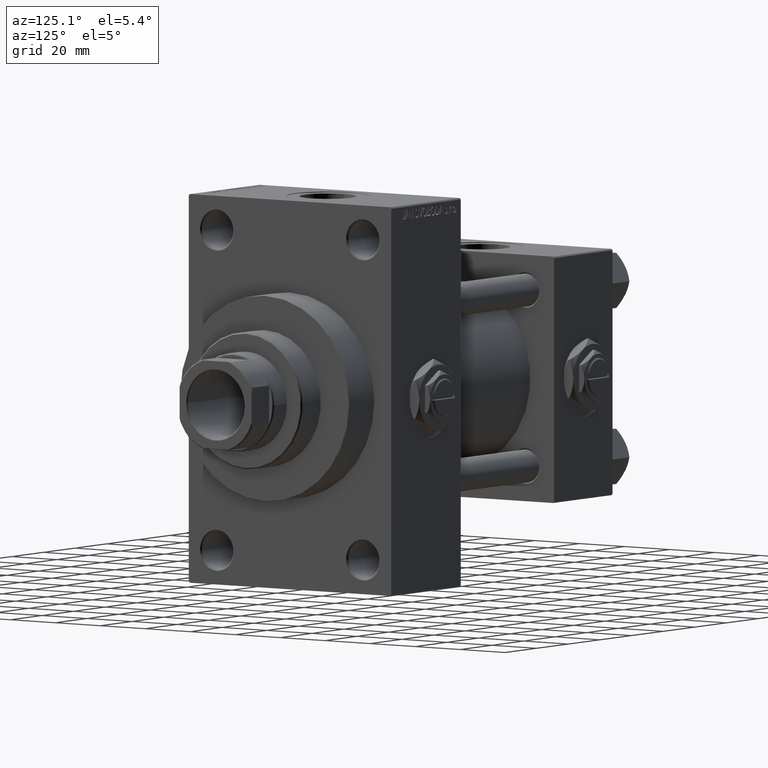
[diagram: clean part render]
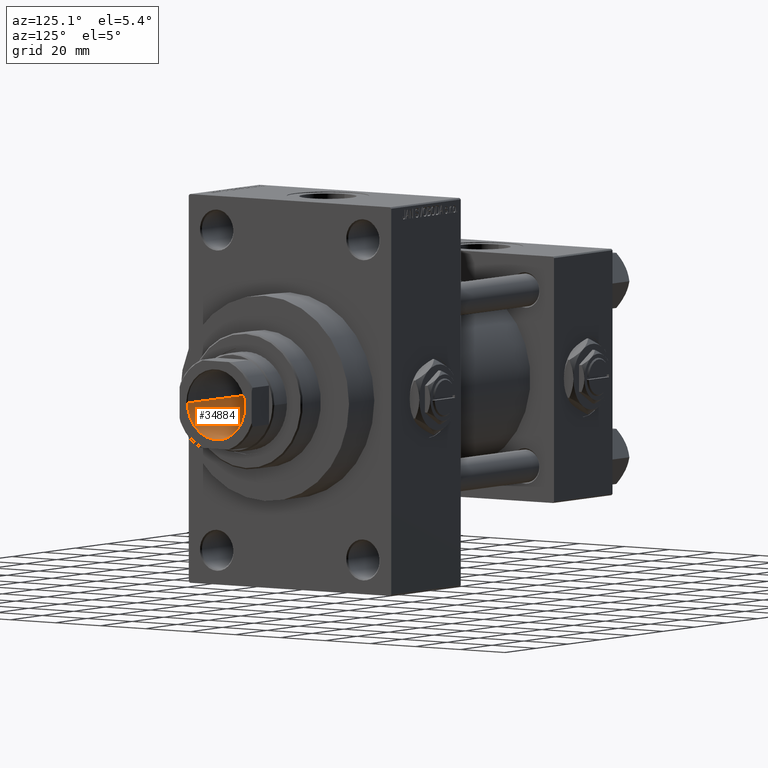
[diagram: same view with one face highlighted and labeled with its STEP entity id]
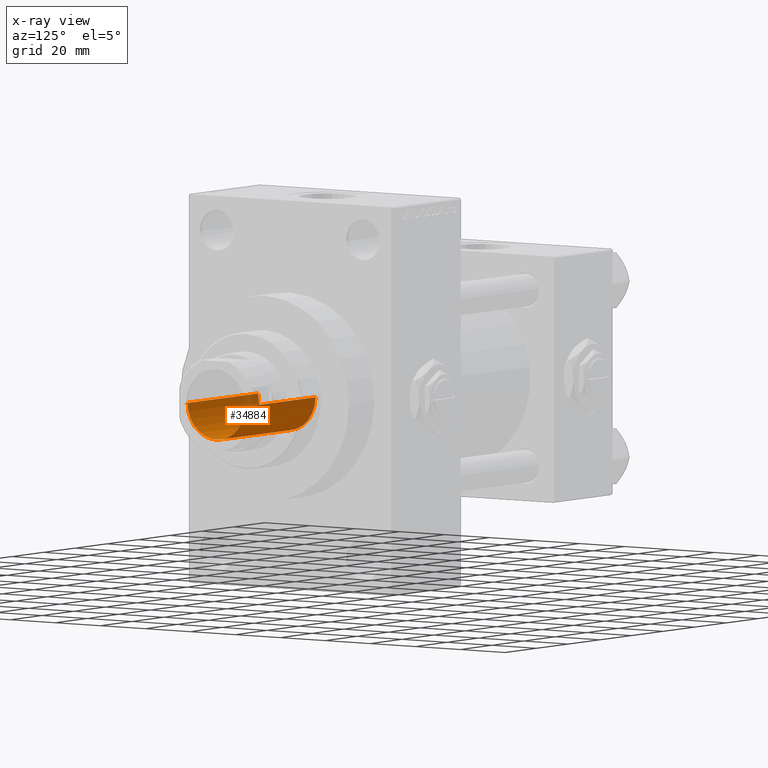
[diagram: x-ray of the same camera — body ghosted, the highlighted face saturated]
A machine part, auxiliary view. The second image highlights one B-rep face of the part: STEP entity #34884.
The next image is the same camera in x-ray: the body ghosted, the highlighted face saturated — about 4% of this face is hidden behind the body in this view.
In plain terms, the highlighted cylindrical surface (edge-blend (fillet) strip) has radius 12.75 mm, axis along (1, 0, 0).
Its self-contained STEP definition (entity closure, byte-faithful):
#243 = AXIS2_PLACEMENT_3D ( 'NONE', #47529, #1423, #29084 ) ;
#545 = DIRECTION ( 'NONE',  ( -0.000000000000000000, -0.000000000000000000, 1.000000000000000000 ) ) ;
#593 = ORIENTED_EDGE ( 'NONE', *, *, #11646, .F. ) ;
#1327 = LINE ( 'NONE', #16537, #8792 ) ;
#1369 = CARTESIAN_POINT ( 'NONE',  ( 12.74999999999998934, 0.000000000000000000, 105.0000000000000284 ) ) ;
#1423 = DIRECTION ( 'NONE',  ( -0.000000000000000000, -0.000000000000000000, 1.000000000000000000 ) ) ;
#3482 = VECTOR ( 'NONE', #545, 1000.000000000000000 ) ;
#4202 = CIRCLE ( 'NONE', #243, 12.74999999999998934 ) ;
#6218 = CARTESIAN_POINT ( 'NONE',  ( -12.74999999999999112, 1.561424668912874125E-15, 149.7000000000000455 ) ) ;
#8614 = DIRECTION ( 'NONE',  ( -0.000000000000000000, -0.000000000000000000, 1.000000000000000000 ) ) ;
#8792 = VECTOR ( 'NONE', #28001, 1000.000000000000000 ) ;
#10065 = CARTESIAN_POINT ( 'NONE',  ( 12.74999999999999112, 0.000000000000000000, 149.7000000000000455 ) ) ;
#10309 = ORIENTED_EDGE ( 'NONE', *, *, #13669, .F. ) ;
#11646 = EDGE_CURVE ( 'NONE', #19065, #47466, #4202, .T. ) ;
#12262 = LINE ( 'NONE', #46667, #3482 ) ;
#12713 = EDGE_CURVE ( 'NONE', #15502, #39706, #23353, .T. ) ;
#13669 = EDGE_CURVE ( 'NONE', #47466, #39706, #12262, .T. ) ;
#14510 = EDGE_LOOP ( 'NONE', ( #10309, #593, #32215, #39708 ) ) ;
#15502 = VERTEX_POINT ( 'NONE', #10065 ) ;
#16537 = CARTESIAN_POINT ( 'NONE',  ( 12.74999999999999112, 0.000000000000000000, 150.0000000000000284 ) ) ;
#19065 = VERTEX_POINT ( 'NONE', #1369 ) ;
#20339 = CARTESIAN_POINT ( 'NONE',  ( 0.000000000000000000, 0.000000000000000000, 150.0000000000000284 ) ) ;
#23333 = CARTESIAN_POINT ( 'NONE',  ( 0.000000000000000000, 0.000000000000000000, 149.7000000000000455 ) ) ;
#23353 = CIRCLE ( 'NONE', #32927, 12.74999999999999112 ) ;
#23579 = DIRECTION ( 'NONE',  ( 1.000000000000000000, 0.000000000000000000, 0.000000000000000000 ) ) ;
#24561 = FACE_OUTER_BOUND ( 'NONE', #14510, .T. ) ;
#28001 = DIRECTION ( 'NONE',  ( -0.000000000000000000, -0.000000000000000000, 1.000000000000000000 ) ) ;
#29084 = DIRECTION ( 'NONE',  ( 1.000000000000000000, 0.000000000000000000, 0.000000000000000000 ) ) ;
#32215 = ORIENTED_EDGE ( 'NONE', *, *, #36127, .T. ) ;
#32927 = AXIS2_PLACEMENT_3D ( 'NONE', #23333, #42764, #23579 ) ;
#34884 = ADVANCED_FACE ( 'NONE', ( #24561 ), #36034, .F. ) ;
#35547 = DIRECTION ( 'NONE',  ( 1.000000000000000000, 0.000000000000000000, 0.000000000000000000 ) ) ;
#35852 = AXIS2_PLACEMENT_3D ( 'NONE', #20339, #8614, #35547 ) ;
#36034 = CYLINDRICAL_SURFACE ( 'NONE', #35852, 12.74999999999999112 ) ;
#36127 = EDGE_CURVE ( 'NONE', #19065, #15502, #1327, .T. ) ;
#38984 = CARTESIAN_POINT ( 'NONE',  ( -12.74999999999998934, 1.561424668912873928E-15, 105.0000000000000284 ) ) ;
#39706 = VERTEX_POINT ( 'NONE', #6218 ) ;
#39708 = ORIENTED_EDGE ( 'NONE', *, *, #12713, .T. ) ;
#42764 = DIRECTION ( 'NONE',  ( 0.000000000000000000, 0.000000000000000000, 1.000000000000000000 ) ) ;
#46667 = CARTESIAN_POINT ( 'NONE',  ( -12.74999999999999112, 1.561424668912874125E-15, 150.0000000000000284 ) ) ;
#47466 = VERTEX_POINT ( 'NONE', #38984 ) ;
#47529 = CARTESIAN_POINT ( 'NONE',  ( 0.000000000000000000, 0.000000000000000000, 105.0000000000000284 ) ) ;